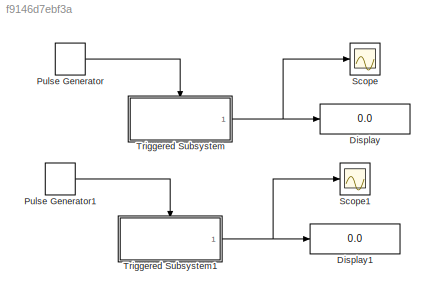
MODEL slx_f9146d7ebf3a
KIND model
CONFIG AbsTol = auto
CONFIG EnableMultiTasking = off
CONFIG FixedStep = auto
CONFIG MaxStep = auto
CONFIG MinStep = auto
CONFIG RelTol = 1e-3
CONFIG SampleTimeConstraint = Unconstrained
CONFIG SolverName = VariableStepAuto
CONFIG StartTime = 0.0
CONFIG StopTime = 10.0
BLOCK [Display] Display
  Decimation = 1
  Ports = [1]
BLOCK [Display] Display1
  Decimation = 1
  Ports = [1]
BLOCK [DiscretePulseGenerator] Pulse Generator
  Ports = [0, 1]
  PulseType = Time based
  PulseWidth = 5
BLOCK [DiscretePulseGenerator] Pulse Generator1
  Ports = [0, 1]
  PulseType = Time based
  PulseWidth = 5
BLOCK [Scope] Scope
  Floating = off
  NumInputPorts = 1
  Ports = [1]
  ScopeSpecificationString = Simulink.scopes.TimeScopeBlockCfg('CurrentConfiguration', extmgr.ConfigurationSet(extmgr.Configuration('Core','General UI',true),extmgr.Configuration('Core','Source UI',true),extmgr.Configuration('Sources','WiredSimulink',true),extmgr.Configuration('Visuals','Time Domain',true,'SerializedDisplays',{struct('MinYLimReal','-0.5','MaxYLimReal','4.5','YLabelReal','','MinYLimMag','0.00000','MaxYLimMag',...<+1376ch>
BLOCK [Scope] Scope1
  Floating = off
  NumInputPorts = 1
  Ports = [1]
  ScopeSpecificationString = Simulink.scopes.TimeScopeBlockCfg('CurrentConfiguration', extmgr.ConfigurationSet(extmgr.Configuration('Core','General UI',true),extmgr.Configuration('Core','Source UI',true),extmgr.Configuration('Sources','WiredSimulink',true,'DataLoggingVariableName','ScopeData1'),extmgr.Configuration('Visuals','Time Domain',true,'SerializedDisplays',{struct('MinYLimReal','-5.00000','MaxYLimReal','10.125','YLabe...<+1490ch>
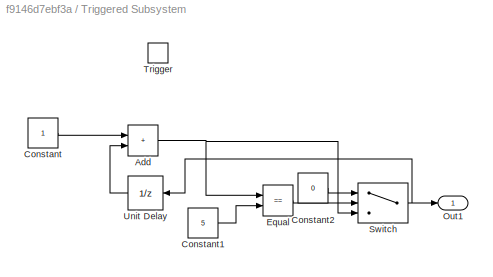
BLOCK [SubSystem] Triggered Subsystem
  Ports = [0, 1, 0, 1]
  RequestExecContextInheritance = off
  TreatAsAtomicUnit = on
BLOCK [Sum] Triggered Subsystem/Add
  IconShape = rectangular
  Ports = [2, 1]
BLOCK [Constant] Triggered Subsystem/Constant
BLOCK [Constant] Triggered Subsystem/Constant1
  Value = 5
BLOCK [Constant] Triggered Subsystem/Constant2
  Value = 0
BLOCK [RelationalOperator] Triggered Subsystem/Equal
  InputSameDT = off
  Operator = ==
  OutDataTypeStr = boolean
  Ports = [2, 1]
  RndMeth = Simplest
BLOCK [Outport] Triggered Subsystem/Out1
BLOCK [Switch] Triggered Subsystem/Switch
  Criteria = u2 > Threshold
  InputSameDT = off
  SaturateOnIntegerOverflow = off
BLOCK [TriggerPort] Triggered Subsystem/Trigger
  Ports = []
  StatesWhenEnabling = held
  VariantControl = (inherit)
BLOCK [UnitDelay] Triggered Subsystem/Unit Delay
  HasFrameUpgradeWarning = on
  NameLocation = top
  SampleTime = -1
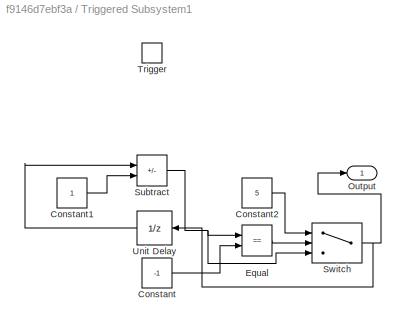
BLOCK [SubSystem] Triggered Subsystem1
  Ports = [0, 1, 0, 1]
  RequestExecContextInheritance = off
  TreatAsAtomicUnit = on
BLOCK [Constant] Triggered Subsystem1/Constant
  Value = -1
BLOCK [Constant] Triggered Subsystem1/Constant1
BLOCK [Constant] Triggered Subsystem1/Constant2
  Value = 5
BLOCK [RelationalOperator] Triggered Subsystem1/Equal
  InputSameDT = off
  Operator = ==
  OutDataTypeStr = boolean
  Ports = [2, 1]
  RndMeth = Simplest
BLOCK [Outport] Triggered Subsystem1/Output
BLOCK [Sum] Triggered Subsystem1/Subtract
  IconShape = rectangular
  Inputs = +-
  Ports = [2, 1]
BLOCK [Switch] Triggered Subsystem1/Switch
  Criteria = u2 > Threshold
  InputSameDT = off
  SaturateOnIntegerOverflow = off
BLOCK [TriggerPort] Triggered Subsystem1/Trigger
  Ports = []
  StatesWhenEnabling = held
  VariantControl = (inherit)
BLOCK [UnitDelay] Triggered Subsystem1/Unit Delay
  HasFrameUpgradeWarning = on
  InitialCondition = 6
  NameLocation = top
  SampleTime = -1
LINE Pulse Generator1:1 -> Triggered Subsystem1:trigger
LINE Pulse Generator:1 -> Triggered Subsystem:trigger
NET Triggered Subsystem/Add:1 -> Triggered Subsystem/Equal:1, Triggered Subsystem/Switch:3
LINE Triggered Subsystem/Constant1:1 -> Triggered Subsystem/Equal:2
LINE Triggered Subsystem/Constant2:1 -> Triggered Subsystem/Switch:1
LINE Triggered Subsystem/Constant:1 -> Triggered Subsystem/Add:1
LINE Triggered Subsystem/Equal:1 -> Triggered Subsystem/Switch:2
NET Triggered Subsystem/Switch:1 -> Triggered Subsystem/Out1:1, Triggered Subsystem/Unit Delay:1
LINE Triggered Subsystem/Unit Delay:1 -> Triggered Subsystem/Add:2
LINE Triggered Subsystem1/Constant1:1 -> Triggered Subsystem1/Subtract:2
LINE Triggered Subsystem1/Constant2:1 -> Triggered Subsystem1/Switch:1
LINE Triggered Subsystem1/Constant:1 -> Triggered Subsystem1/Equal:2
LINE Triggered Subsystem1/Equal:1 -> Triggered Subsystem1/Switch:2
NET Triggered Subsystem1/Subtract:1 -> Triggered Subsystem1/Equal:1, Triggered Subsystem1/Switch:3
NET Triggered Subsystem1/Switch:1 -> Triggered Subsystem1/Output:1, Triggered Subsystem1/Unit Delay:1
LINE Triggered Subsystem1/Unit Delay:1 -> Triggered Subsystem1/Subtract:1
NET Triggered Subsystem1:1 -> Display1:1, Scope1:1
NET Triggered Subsystem:1 -> Display:1, Scope:1
note: NET lines group one-source signal fan-out (src -> all destinations, sorted); 1:1 wires keep LINE
